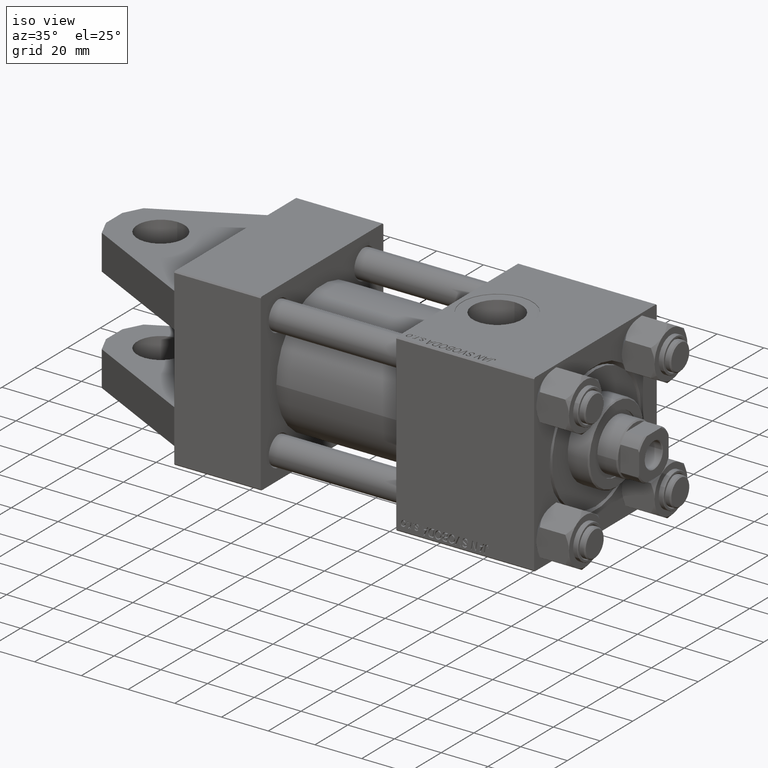
[diagram: clean part render]
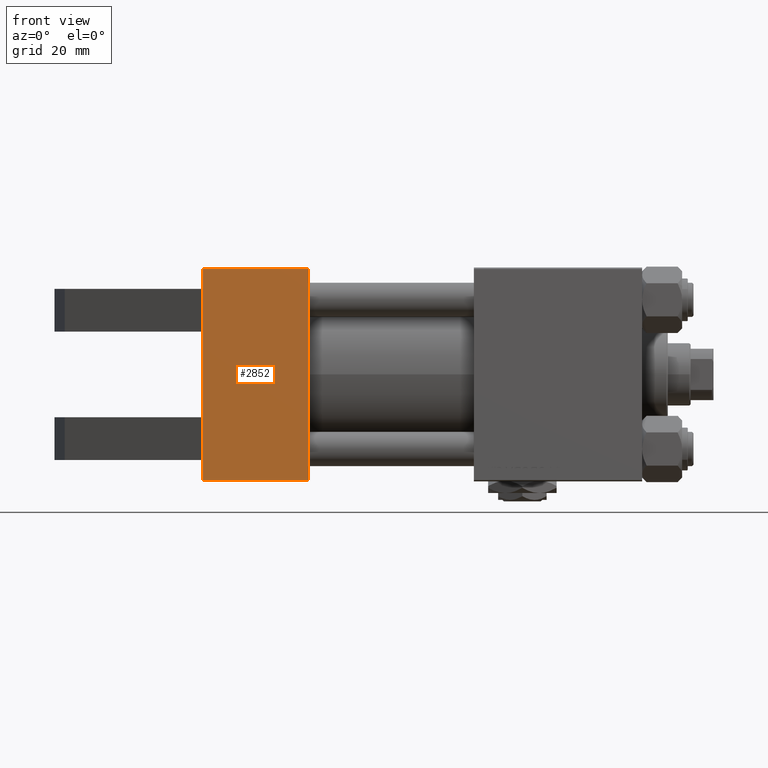
[diagram: tour spotlight — one face highlighted and labeled with its STEP entity id]
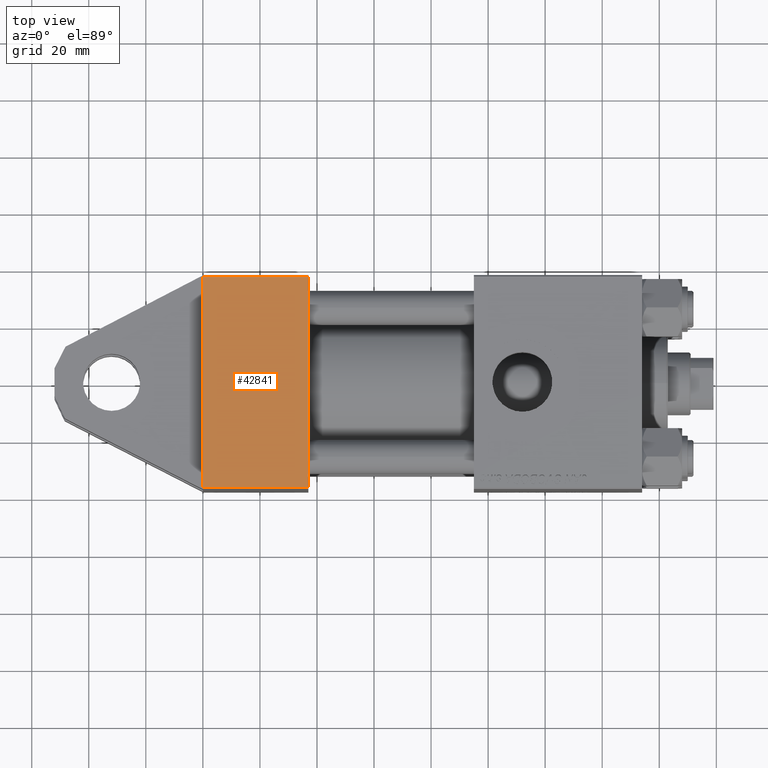
[diagram: tour spotlight — one face highlighted and labeled with its STEP entity id]
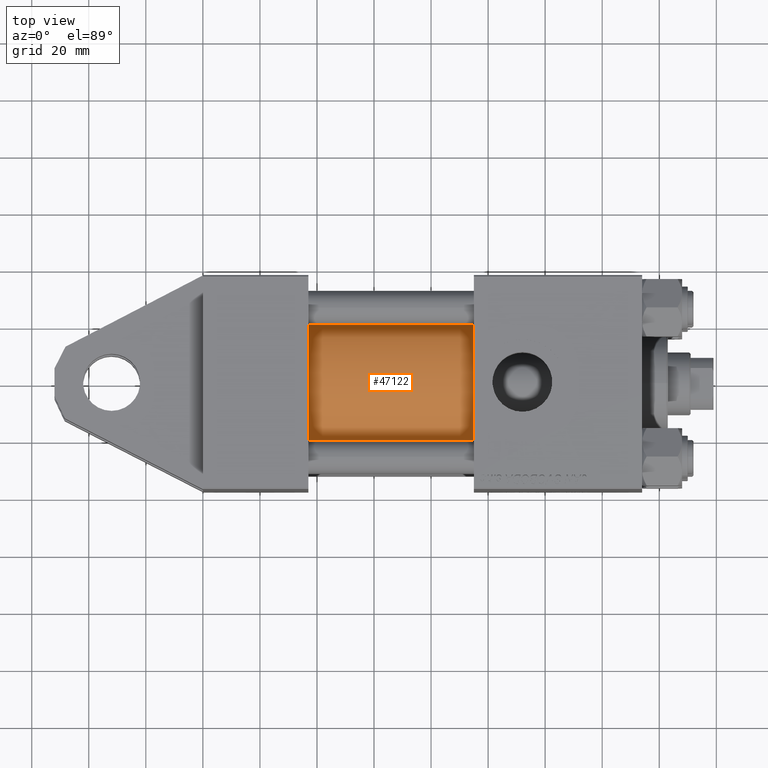
[diagram: tour spotlight — one face highlighted and labeled with its STEP entity id]
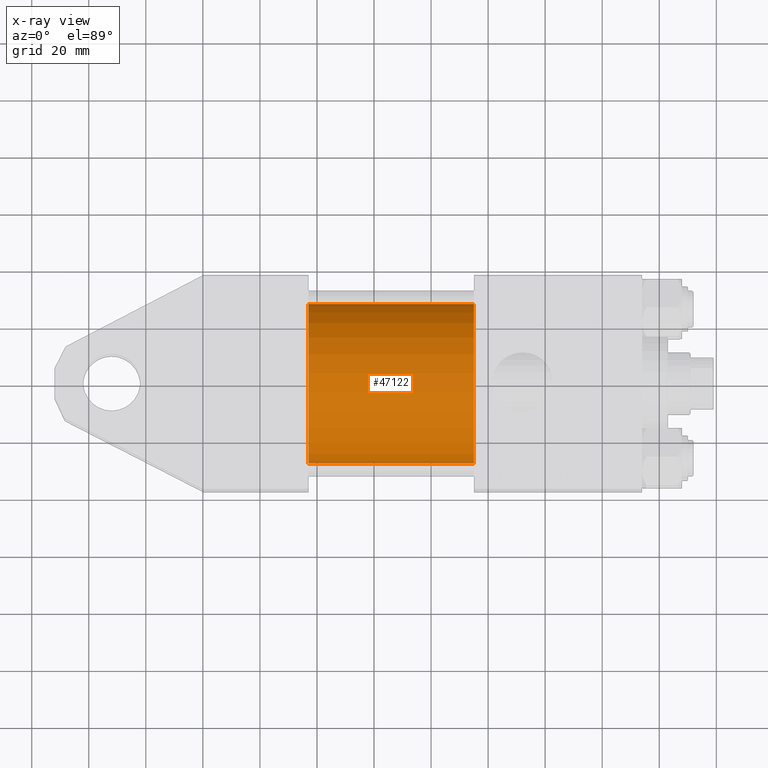
[diagram: x-ray of the same camera — body ghosted, this tour face saturated]
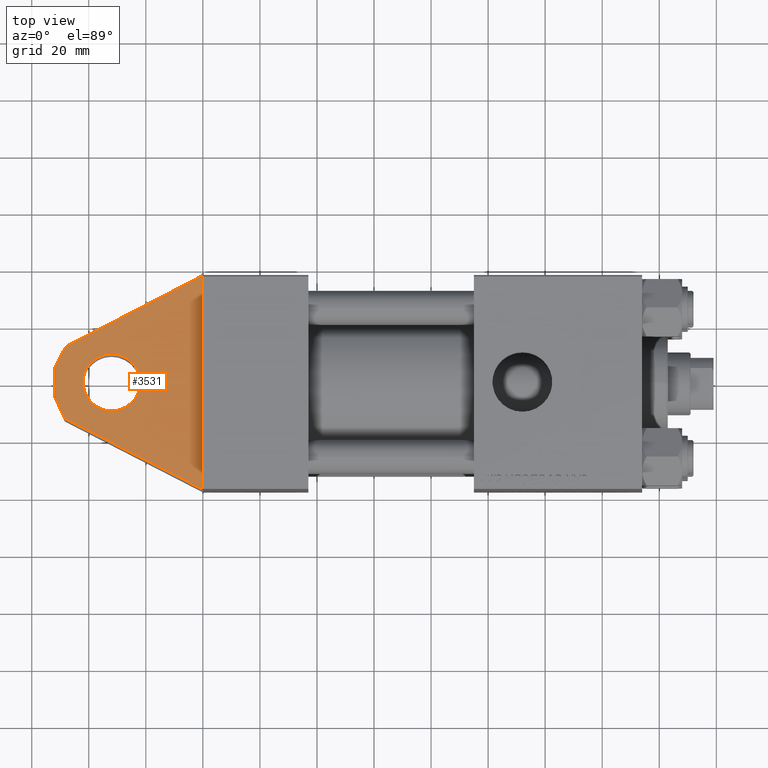
[diagram: tour spotlight — one face highlighted and labeled with its STEP entity id]
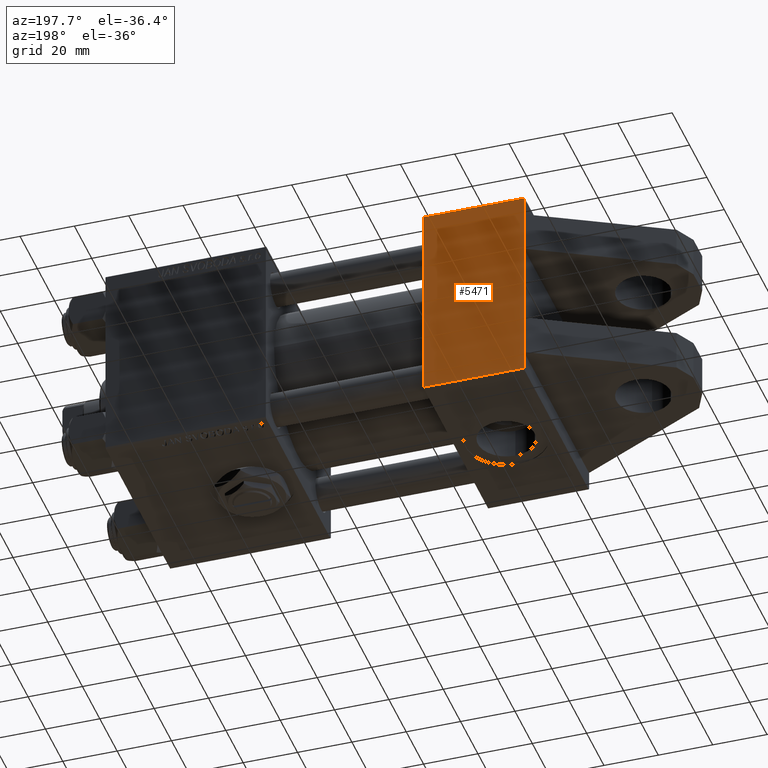
[diagram: tour spotlight — one face highlighted and labeled with its STEP entity id]
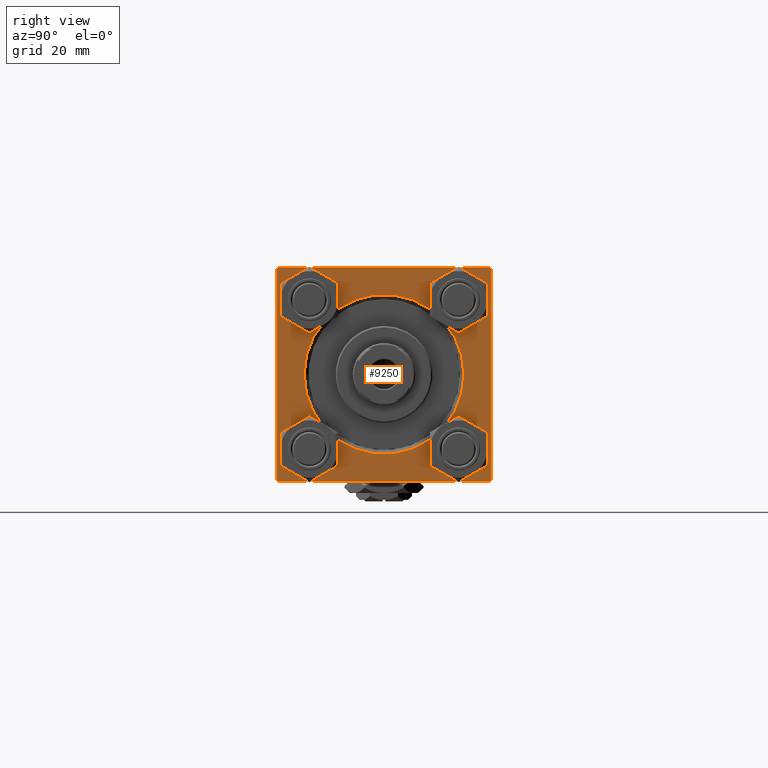
[diagram: tour spotlight — one face highlighted and labeled with its STEP entity id]
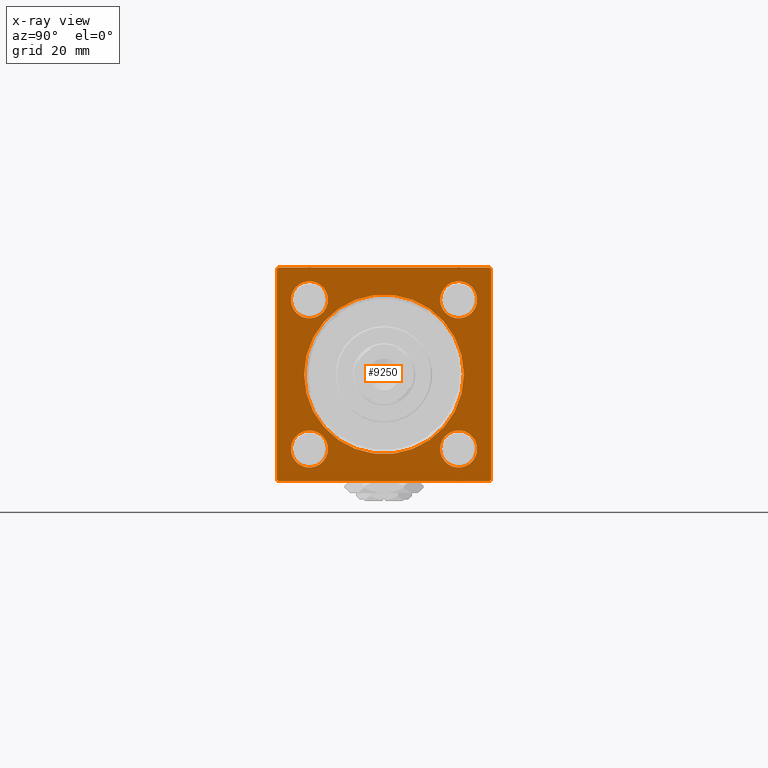
[diagram: x-ray of the same camera — body ghosted, this tour face saturated]
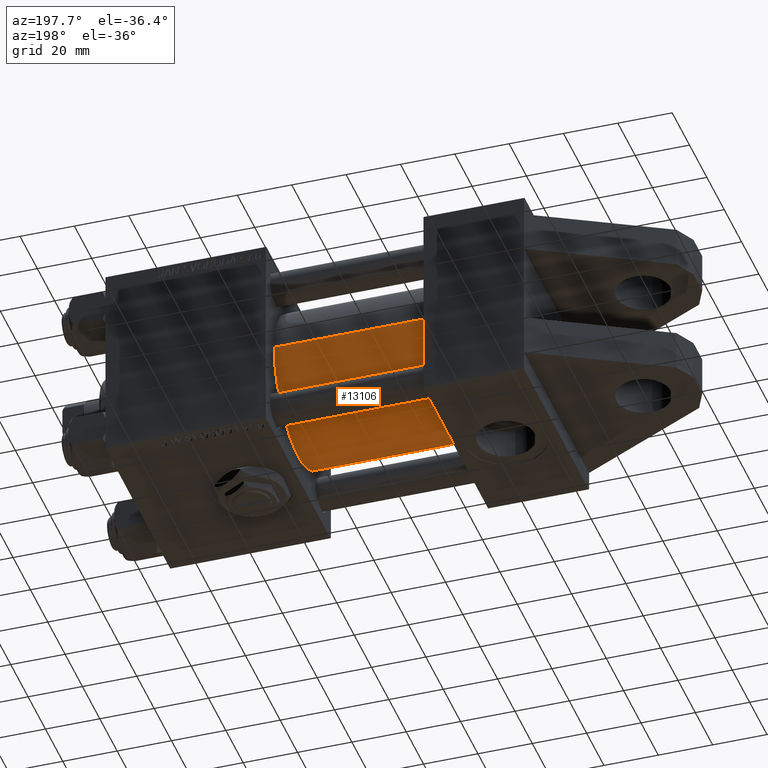
[diagram: tour spotlight — one face highlighted and labeled with its STEP entity id]
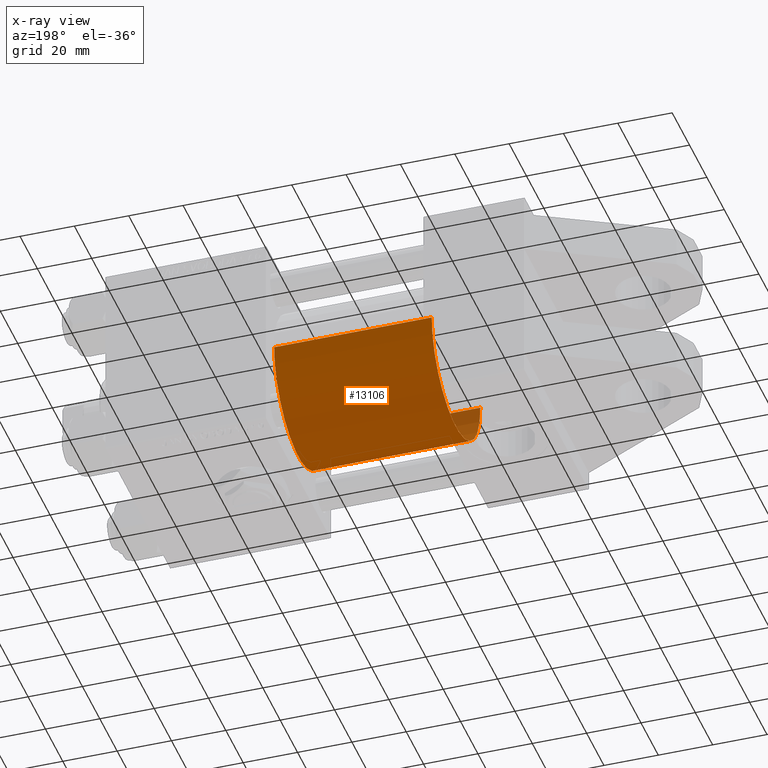
[diagram: x-ray of the same camera — body ghosted, this tour face saturated]
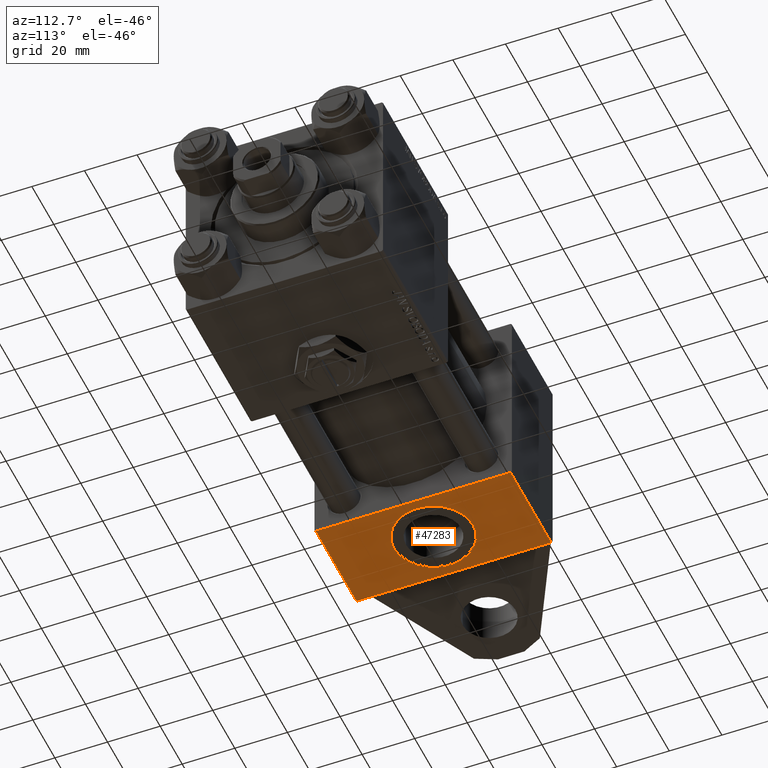
[diagram: tour spotlight — one face highlighted and labeled with its STEP entity id]
A machine part: a face-by-face anatomy tour. The part has 1176 B-rep faces; the first image is the clean iso view, then the 8 largest visible faces are spotlighted one at a time (largest first), each with its STEP entity span.

Face 1 — front view, entity #2852. In plain terms, the highlighted planar face has unit normal (0, -1, -0).
Definition (entity closure, byte-faithful):
#416 = LINE ( 'NONE', #26100, #2701 ) ;
#1530 = VECTOR ( 'NONE', #22332, 1000.000000000000000 ) ;
#1742 = ORIENTED_EDGE ( 'NONE', *, *, #3880, .T. ) ;
#2701 = VECTOR ( 'NONE', #12643, 1000.000000000000000 ) ;
#2852 = ADVANCED_FACE ( 'NONE', ( #11860 ), #3806, .T. ) ;
#3102 = DIRECTION ( 'NONE',  ( 0.000000000000000000, -1.000000000000000000, -9.251858538542972814E-17 ) ) ;
#3184 = EDGE_CURVE ( 'NONE', #46939, #23596, #42995, .T. ) ;
#3486 = VECTOR ( 'NONE', #3102, 1000.000000000000000 ) ;
#3806 = PLANE ( 'NONE',  #36883 ) ;
#3880 = EDGE_CURVE ( 'NONE', #17426, #16801, #20763, .T. ) ;
#4793 = ORIENTED_EDGE ( 'NONE', *, *, #37857, .F. ) ;
#5600 = DIRECTION ( 'NONE',  ( -1.000000000000000000, 0.000000000000000000, 0.000000000000000000 ) ) ;
#6621 = CARTESIAN_POINT ( 'NONE',  ( 0.000000000000000000, 30.00000000000000000, -37.50000000000000711 ) ) ;
#6649 = EDGE_LOOP ( 'NONE', ( #51392, #49361, #12657, #44954, #37991, #1742, #16624, #4793 ) ) ;
#7024 = CARTESIAN_POINT ( 'NONE',  ( 0.000000000000000000, -30.00000000000000000, -37.50000000000000711 ) ) ;
#7151 = CARTESIAN_POINT ( 'NONE',  ( 37.00000000000000000, 37.49999999999999289, -37.50000000000000000 ) ) ;
#7466 = DIRECTION ( 'NONE',  ( 0.000000000000000000, 1.000000000000000000, 9.251858538542972814E-17 ) ) ;
#8469 = LINE ( 'NONE', #28488, #43008 ) ;
#11860 = FACE_OUTER_BOUND ( 'NONE', #6649, .T. ) ;
#12643 = DIRECTION ( 'NONE',  ( 1.000000000000000000, 0.000000000000000000, 0.000000000000000000 ) ) ;
#12657 = ORIENTED_EDGE ( 'NONE', *, *, #3184, .T. ) ;
#13226 = DIRECTION ( 'NONE',  ( -0.000000000000000000, 1.000000000000000000, -0.000000000000000000 ) ) ;
#15199 = DIRECTION ( 'NONE',  ( 0.000000000000000000, -1.000000000000000000, -9.251858538542972814E-17 ) ) ;
#16624 = ORIENTED_EDGE ( 'NONE', *, *, #18042, .F. ) ;
#16801 = VERTEX_POINT ( 'NONE', #48731 ) ;
#17205 = DIRECTION ( 'NONE',  ( -0.000000000000000000, -1.000000000000000000, -0.000000000000000000 ) ) ;
#17426 = VERTEX_POINT ( 'NONE', #7024 ) ;
#18042 = EDGE_CURVE ( 'NONE', #49125, #16801, #38536, .T. ) ;
#20763 = LINE ( 'NONE', #41015, #46845 ) ;
#21566 = EDGE_CURVE ( 'NONE', #23596, #21634, #8469, .T. ) ;
#21634 = VERTEX_POINT ( 'NONE', #22238 ) ;
#22238 = CARTESIAN_POINT ( 'NONE',  ( 0.000000000000000000, -37.00000000000002132, -37.50000000000000711 ) ) ;
#22332 = DIRECTION ( 'NONE',  ( 0.000000000000000000, -1.000000000000000000, -9.251858538542972814E-17 ) ) ;
#22625 = EDGE_CURVE ( 'NONE', #17426, #21634, #46221, .T. ) ;
#23596 = VERTEX_POINT ( 'NONE', #27013 ) ;
#26100 = CARTESIAN_POINT ( 'NONE',  ( 37.00000000000000000, 36.99999999999997868, -37.50000000000000000 ) ) ;
#27013 = CARTESIAN_POINT ( 'NONE',  ( 37.00000000000000000, -37.00000000000002132, -37.50000000000000711 ) ) ;
#27931 = CARTESIAN_POINT ( 'NONE',  ( 0.000000000000000000, 36.99999999999997868, -37.50000000000000000 ) ) ;
#28488 = CARTESIAN_POINT ( 'NONE',  ( 0.000000000000000000, -37.00000000000002132, -37.50000000000000711 ) ) ;
#30928 = CARTESIAN_POINT ( 'NONE',  ( 0.000000000000000000, 37.49999999999999289, -37.50000000000000000 ) ) ;
#33061 = LINE ( 'NONE', #48890, #36479 ) ;
#36479 = VECTOR ( 'NONE', #17205, 1000.000000000000000 ) ;
#36654 = VERTEX_POINT ( 'NONE', #27931 ) ;
#36883 = AXIS2_PLACEMENT_3D ( 'NONE', #46955, #43056, #7466 ) ;
#37857 = EDGE_CURVE ( 'NONE', #42939, #49125, #33061, .T. ) ;
#37991 = ORIENTED_EDGE ( 'NONE', *, *, #22625, .F. ) ;
#38431 = CARTESIAN_POINT ( 'NONE',  ( 0.000000000000000000, 37.49999999999999289, -37.50000000000000000 ) ) ;
#38536 = LINE ( 'NONE', #45821, #45513 ) ;
#41015 = CARTESIAN_POINT ( 'NONE',  ( 0.000000000000000000, -30.00000000000000000, -37.50000000000000711 ) ) ;
#41584 = CARTESIAN_POINT ( 'NONE',  ( 0.000000000000000000, 15.00000000000000000, -37.50000000000000000 ) ) ;
#42939 = VERTEX_POINT ( 'NONE', #6621 ) ;
#42995 = LINE ( 'NONE', #7151, #50946 ) ;
#43008 = VECTOR ( 'NONE', #5600, 1000.000000000000000 ) ;
#43056 = DIRECTION ( 'NONE',  ( 0.000000000000000000, 9.251858538542972814E-17, -1.000000000000000000 ) ) ;
#43316 = EDGE_CURVE ( 'NONE', #36654, #42939, #45742, .T. ) ;
#43707 = CARTESIAN_POINT ( 'NONE',  ( 37.00000000000000000, 36.99999999999997868, -37.50000000000000000 ) ) ;
#44954 = ORIENTED_EDGE ( 'NONE', *, *, #21566, .T. ) ;
#45264 = EDGE_CURVE ( 'NONE', #36654, #46939, #416, .T. ) ;
#45513 = VECTOR ( 'NONE', #50226, 1000.000000000000000 ) ;
#45742 = LINE ( 'NONE', #30928, #3486 ) ;
#45821 = CARTESIAN_POINT ( 'NONE',  ( 0.000000000000000000, 37.49999999999999289, -37.50000000000000000 ) ) ;
#46221 = LINE ( 'NONE', #38431, #1530 ) ;
#46845 = VECTOR ( 'NONE', #13226, 1000.000000000000000 ) ;
#46939 = VERTEX_POINT ( 'NONE', #43707 ) ;
#46955 = CARTESIAN_POINT ( 'NONE',  ( 37.00000000000000000, 37.49999999999999289, -37.50000000000000000 ) ) ;
#48731 = CARTESIAN_POINT ( 'NONE',  ( 0.000000000000000000, -15.00000000000000000, -37.50000000000000711 ) ) ;
#48890 = CARTESIAN_POINT ( 'NONE',  ( 0.000000000000000000, 30.00000000000000000, -37.50000000000000711 ) ) ;
#49125 = VERTEX_POINT ( 'NONE', #41584 ) ;
#49361 = ORIENTED_EDGE ( 'NONE', *, *, #45264, .T. ) ;
#50226 = DIRECTION ( 'NONE',  ( 0.000000000000000000, -1.000000000000000000, -9.251858538542972814E-17 ) ) ;
#50946 = VECTOR ( 'NONE', #15199, 1000.000000000000000 ) ;
#51392 = ORIENTED_EDGE ( 'NONE', *, *, #43316, .F. ) ;

Face 2 — top view, entity #42841. In plain terms, the highlighted planar face has unit normal (0, 0, -1).
Definition (entity closure, byte-faithful):
#5680 = VECTOR ( 'NONE', #45736, 1000.000000000000000 ) ;
#6967 = EDGE_CURVE ( 'NONE', #14301, #32338, #21038, .T. ) ;
#7135 = DIRECTION ( 'NONE',  ( 0.000000000000000000, -9.251858538542971581E-17, 1.000000000000000000 ) ) ;
#7596 = VERTEX_POINT ( 'NONE', #8957 ) ;
#8957 = CARTESIAN_POINT ( 'NONE',  ( 0.000000000000000000, -37.50000000000000711, 36.99999999999999289 ) ) ;
#9940 = DIRECTION ( 'NONE',  ( 0.000000000000000000, 9.251858538542971581E-17, -1.000000000000000000 ) ) ;
#12369 = VECTOR ( 'NONE', #9940, 1000.000000000000000 ) ;
#14301 = VERTEX_POINT ( 'NONE', #44382 ) ;
#17725 = LINE ( 'NONE', #17975, #47227 ) ;
#17975 = CARTESIAN_POINT ( 'NONE',  ( 0.000000000000000000, -37.50000000000000711, 37.49999999999999289 ) ) ;
#21038 = LINE ( 'NONE', #28336, #44425 ) ;
#21642 = ORIENTED_EDGE ( 'NONE', *, *, #23207, .T. ) ;
#21784 = VERTEX_POINT ( 'NONE', #36711 ) ;
#23143 = EDGE_CURVE ( 'NONE', #21784, #32338, #33333, .T. ) ;
#23207 = EDGE_CURVE ( 'NONE', #7596, #14301, #17725, .T. ) ;
#24025 = ORIENTED_EDGE ( 'NONE', *, *, #30604, .T. ) ;
#25872 = PLANE ( 'NONE',  #25908 ) ;
#25908 = AXIS2_PLACEMENT_3D ( 'NONE', #41701, #33917, #7135 ) ;
#28336 = CARTESIAN_POINT ( 'NONE',  ( 37.00000000000000000, -37.50000000000000000, -37.00000000000003553 ) ) ;
#29412 = CARTESIAN_POINT ( 'NONE',  ( 37.00000000000000000, -37.50000000000000000, -37.00000000000003553 ) ) ;
#30604 = EDGE_CURVE ( 'NONE', #21784, #7596, #44952, .T. ) ;
#32338 = VERTEX_POINT ( 'NONE', #29412 ) ;
#33278 = CARTESIAN_POINT ( 'NONE',  ( 37.00000000000000000, -37.50000000000000711, 36.99999999999999289 ) ) ;
#33333 = LINE ( 'NONE', #41108, #12369 ) ;
#33917 = DIRECTION ( 'NONE',  ( -0.000000000000000000, 1.000000000000000000, 9.251858538542971581E-17 ) ) ;
#36385 = DIRECTION ( 'NONE',  ( 1.000000000000000000, 0.000000000000000000, 0.000000000000000000 ) ) ;
#36711 = CARTESIAN_POINT ( 'NONE',  ( 37.00000000000000000, -37.50000000000000711, 36.99999999999999289 ) ) ;
#36909 = EDGE_LOOP ( 'NONE', ( #21642, #38270, #43747, #24025 ) ) ;
#38270 = ORIENTED_EDGE ( 'NONE', *, *, #6967, .T. ) ;
#41108 = CARTESIAN_POINT ( 'NONE',  ( 37.00000000000000000, -37.50000000000000711, 37.49999999999999289 ) ) ;
#41701 = CARTESIAN_POINT ( 'NONE',  ( 37.00000000000000000, -37.50000000000000711, 37.49999999999999289 ) ) ;
#42841 = ADVANCED_FACE ( 'NONE', ( #45346 ), #25872, .F. ) ;
#43747 = ORIENTED_EDGE ( 'NONE', *, *, #23143, .F. ) ;
#44382 = CARTESIAN_POINT ( 'NONE',  ( 0.000000000000000000, -37.50000000000000000, -37.00000000000003553 ) ) ;
#44425 = VECTOR ( 'NONE', #36385, 1000.000000000000000 ) ;
#44952 = LINE ( 'NONE', #33278, #5680 ) ;
#45274 = DIRECTION ( 'NONE',  ( 0.000000000000000000, 9.251858538542971581E-17, -1.000000000000000000 ) ) ;
#45346 = FACE_OUTER_BOUND ( 'NONE', #36909, .T. ) ;
#45736 = DIRECTION ( 'NONE',  ( -1.000000000000000000, 0.000000000000000000, 0.000000000000000000 ) ) ;
#47227 = VECTOR ( 'NONE', #45274, 1000.000000000000000 ) ;

Face 3 — top view, entity #47122. An x-ray twin of the same camera follows (body ghosted, this face saturated) — the face is partly hidden behind the body. In plain terms, the highlighted cylindrical surface (partial cylindrical patch) has radius 28 mm, axis along (-1, -0, 0).
Definition (entity closure, byte-faithful):
#974 = ORIENTED_EDGE ( 'NONE', *, *, #15559, .F. ) ;
#3586 = CYLINDRICAL_SURFACE ( 'NONE', #9389, 28.00000000000000000 ) ;
#5830 = CARTESIAN_POINT ( 'NONE',  ( 95.00000000000000000, -4.043591434102586818E-17, -28.00000000000000000 ) ) ;
#8993 = DIRECTION ( 'NONE',  ( -1.000000000000000000, -0.000000000000000000, -0.000000000000000000 ) ) ;
#9389 = AXIS2_PLACEMENT_3D ( 'NONE', #20204, #12151, #23361 ) ;
#10972 = EDGE_LOOP ( 'NONE', ( #974, #24248, #30275, #40487 ) ) ;
#11653 = FACE_OUTER_BOUND ( 'NONE', #10972, .T. ) ;
#12151 = DIRECTION ( 'NONE',  ( -1.000000000000000000, -0.000000000000000000, -0.000000000000000000 ) ) ;
#12940 = CARTESIAN_POINT ( 'NONE',  ( 95.00000000000000000, -3.469446951953614189E-15, 28.00000000000000000 ) ) ;
#13621 = VERTEX_POINT ( 'NONE', #12940 ) ;
#13676 = LINE ( 'NONE', #28500, #21322 ) ;
#15379 = CARTESIAN_POINT ( 'NONE',  ( 37.00000000000000000, -3.469446951953614189E-15, 28.00000000000000000 ) ) ;
#15559 = EDGE_CURVE ( 'NONE', #38775, #36601, #13676, .T. ) ;
#15787 = DIRECTION ( 'NONE',  ( 1.000000000000000000, -0.000000000000000000, 0.000000000000000000 ) ) ;
#18925 = EDGE_CURVE ( 'NONE', #13621, #38775, #23151, .T. ) ;
#19172 = CARTESIAN_POINT ( 'NONE',  ( 95.00000000000000000, -3.469446951953614189E-15, 0.000000000000000000 ) ) ;
#20204 = CARTESIAN_POINT ( 'NONE',  ( 95.00000000000000000, -3.469446951953614189E-15, 0.000000000000000000 ) ) ;
#20950 = DIRECTION ( 'NONE',  ( 1.000000000000000000, 0.000000000000000000, 0.000000000000000000 ) ) ;
#21322 = VECTOR ( 'NONE', #8993, 1000.000000000000000 ) ;
#22689 = EDGE_CURVE ( 'NONE', #48826, #36601, #48827, .T. ) ;
#23151 = CIRCLE ( 'NONE', #37271, 28.00000000000000000 ) ;
#23361 = DIRECTION ( 'NONE',  ( 0.000000000000000000, 0.000000000000000000, 1.000000000000000000 ) ) ;
#23372 = DIRECTION ( 'NONE',  ( -1.000000000000000000, -0.000000000000000000, -0.000000000000000000 ) ) ;
#24248 = ORIENTED_EDGE ( 'NONE', *, *, #18925, .F. ) ;
#24618 = CARTESIAN_POINT ( 'NONE',  ( 37.00000000000000000, -3.469446951953614189E-15, 0.000000000000000000 ) ) ;
#26023 = EDGE_CURVE ( 'NONE', #13621, #48826, #51387, .T. ) ;
#26448 = AXIS2_PLACEMENT_3D ( 'NONE', #24618, #15787, #47996 ) ;
#28500 = CARTESIAN_POINT ( 'NONE',  ( 95.00000000000000000, -4.043591434102586818E-17, -28.00000000000000000 ) ) ;
#30039 = VECTOR ( 'NONE', #23372, 1000.000000000000000 ) ;
#30275 = ORIENTED_EDGE ( 'NONE', *, *, #26023, .T. ) ;
#31583 = CARTESIAN_POINT ( 'NONE',  ( 37.00000000000000000, -4.043591434102586818E-17, -28.00000000000000000 ) ) ;
#31670 = CARTESIAN_POINT ( 'NONE',  ( 95.00000000000000000, -3.469446951953614189E-15, 28.00000000000000000 ) ) ;
#36300 = DIRECTION ( 'NONE',  ( 0.000000000000000000, 0.000000000000000000, -1.000000000000000000 ) ) ;
#36601 = VERTEX_POINT ( 'NONE', #31583 ) ;
#37271 = AXIS2_PLACEMENT_3D ( 'NONE', #19172, #20950, #36300 ) ;
#38775 = VERTEX_POINT ( 'NONE', #5830 ) ;
#40487 = ORIENTED_EDGE ( 'NONE', *, *, #22689, .T. ) ;
#47122 = ADVANCED_FACE ( 'NONE', ( #11653 ), #3586, .T. ) ;
#47996 = DIRECTION ( 'NONE',  ( 0.000000000000000000, 0.000000000000000000, 1.000000000000000000 ) ) ;
#48826 = VERTEX_POINT ( 'NONE', #15379 ) ;
#48827 = CIRCLE ( 'NONE', #26448, 28.00000000000000000 ) ;
#51387 = LINE ( 'NONE', #31670, #30039 ) ;

Face 4 — top view, entity #3531. In plain terms, the highlighted planar face has unit normal (0, 0, 1).
Definition (entity closure, byte-faithful):
#207 = CARTESIAN_POINT ( 'NONE',  ( -32.00000000000000000, -30.00000000000000000, -6.938893903907228378E-15 ) ) ;
#1060 = EDGE_CURVE ( 'NONE', #51271, #13245, #30969, .T. ) ;
#1610 = ORIENTED_EDGE ( 'NONE', *, *, #32589, .T. ) ;
#2912 = ORIENTED_EDGE ( 'NONE', *, *, #18147, .F. ) ;
#3531 = ADVANCED_FACE ( 'NONE', ( #26847, #35151 ), #26338, .T. ) ;
#4030 = EDGE_CURVE ( 'NONE', #11425, #44131, #50090, .T. ) ;
#5693 = VECTOR ( 'NONE', #46460, 1000.000000000000000 ) ;
#6353 = CARTESIAN_POINT ( 'NONE',  ( -32.00000000000000000, -30.00000000000000000, -6.938893903907228378E-15 ) ) ;
#6707 = CARTESIAN_POINT ( 'NONE',  ( -48.43732805352595960, -30.00000000000000000, -12.64017464471899110 ) ) ;
#7020 = VECTOR ( 'NONE', #26722, 1000.000000000000000 ) ;
#7024 = CARTESIAN_POINT ( 'NONE',  ( 0.000000000000000000, -30.00000000000000000, -37.50000000000000711 ) ) ;
#7847 = AXIS2_PLACEMENT_3D ( 'NONE', #6353, #38057, #21695 ) ;
#8774 = CARTESIAN_POINT ( 'NONE',  ( -52.00000000000000711, -30.00000000000000000, -5.000000000000007105 ) ) ;
#8872 = EDGE_CURVE ( 'NONE', #30755, #18931, #12856, .T. ) ;
#8942 = ORIENTED_EDGE ( 'NONE', *, *, #1060, .F. ) ;
#10313 = AXIS2_PLACEMENT_3D ( 'NONE', #50973, #49966, #38283 ) ;
#10930 = EDGE_LOOP ( 'NONE', ( #33373, #1610 ) ) ;
#11425 = VERTEX_POINT ( 'NONE', #45487 ) ;
#11582 = AXIS2_PLACEMENT_3D ( 'NONE', #207, #20232, #16339 ) ;
#12856 = CIRCLE ( 'NONE', #7847, 10.00000000000000000 ) ;
#13245 = VERTEX_POINT ( 'NONE', #49974 ) ;
#13781 = CARTESIAN_POINT ( 'NONE',  ( 0.000000000000000000, -30.00000000000001421, 37.49999999999999289 ) ) ;
#14134 = ORIENTED_EDGE ( 'NONE', *, *, #36286, .F. ) ;
#14508 = LINE ( 'NONE', #6707, #5693 ) ;
#14820 = DIRECTION ( 'NONE',  ( 0.000000000000000000, 0.000000000000000000, -1.000000000000000000 ) ) ;
#16339 = DIRECTION ( 'NONE',  ( 0.000000000000000000, 0.000000000000000000, 1.000000000000000000 ) ) ;
#16403 = DIRECTION ( 'NONE',  ( 0.8875055616531780656, 0.000000000000000000, 0.4607970030660757943 ) ) ;
#17426 = VERTEX_POINT ( 'NONE', #7024 ) ;
#18147 = EDGE_CURVE ( 'NONE', #44131, #30606, #19543, .T. ) ;
#18759 = EDGE_CURVE ( 'NONE', #17426, #51271, #14508, .T. ) ;
#18931 = VERTEX_POINT ( 'NONE', #48748 ) ;
#19543 = LINE ( 'NONE', #47085, #39699 ) ;
#20232 = DIRECTION ( 'NONE',  ( -0.000000000000000000, 1.000000000000000000, -0.000000000000000000 ) ) ;
#21695 = DIRECTION ( 'NONE',  ( 0.000000000000000000, 0.000000000000000000, 1.000000000000000000 ) ) ;
#21757 = CARTESIAN_POINT ( 'NONE',  ( -48.43732805352595960, -30.00000000000000000, -12.64017464471899110 ) ) ;
#22230 = CARTESIAN_POINT ( 'NONE',  ( -32.00000000000000000, -30.00000000000000000, 9.999999999999992895 ) ) ;
#23728 = EDGE_CURVE ( 'NONE', #13245, #11425, #47493, .T. ) ;
#24002 = VECTOR ( 'NONE', #14820, 1000.000000000000000 ) ;
#25503 = CARTESIAN_POINT ( 'NONE',  ( -48.15077811301358679, -30.00000000000000000, 12.49989272354909353 ) ) ;
#26338 = PLANE ( 'NONE',  #10313 ) ;
#26722 = DIRECTION ( 'NONE',  ( 0.4566099510066921607, 0.000000000000000000, 0.8896669897448518105 ) ) ;
#26847 = FACE_BOUND ( 'NONE', #10930, .T. ) ;
#27233 = EDGE_LOOP ( 'NONE', ( #50130, #39253, #8942, #42703, #14134, #2912 ) ) ;
#30606 = VERTEX_POINT ( 'NONE', #13781 ) ;
#30755 = VERTEX_POINT ( 'NONE', #22230 ) ;
#30969 = LINE ( 'NONE', #34363, #41764 ) ;
#32326 = VECTOR ( 'NONE', #51384, 1000.000000000000000 ) ;
#32589 = EDGE_CURVE ( 'NONE', #18931, #30755, #37295, .T. ) ;
#33373 = ORIENTED_EDGE ( 'NONE', *, *, #8872, .T. ) ;
#34363 = CARTESIAN_POINT ( 'NONE',  ( -52.00000000000000711, -30.00000000000000000, -5.000000000000007105 ) ) ;
#34591 = LINE ( 'NONE', #50409, #24002 ) ;
#34623 = DIRECTION ( 'NONE',  ( -0.4226182617406929465, 0.000000000000000000, 0.9063077870366529343 ) ) ;
#35151 = FACE_OUTER_BOUND ( 'NONE', #27233, .T. ) ;
#36286 = EDGE_CURVE ( 'NONE', #30606, #17426, #34591, .T. ) ;
#37295 = CIRCLE ( 'NONE', #11582, 10.00000000000000000 ) ;
#38057 = DIRECTION ( 'NONE',  ( -0.000000000000000000, 1.000000000000000000, -0.000000000000000000 ) ) ;
#38283 = DIRECTION ( 'NONE',  ( 0.000000000000000000, 0.000000000000000000, 1.000000000000000000 ) ) ;
#39253 = ORIENTED_EDGE ( 'NONE', *, *, #23728, .F. ) ;
#39606 = CARTESIAN_POINT ( 'NONE',  ( -52.00000000000000711, -30.00000000000000000, 4.999999999999992895 ) ) ;
#39699 = VECTOR ( 'NONE', #16403, 1000.000000000000114 ) ;
#41764 = VECTOR ( 'NONE', #34623, 1000.000000000000114 ) ;
#42703 = ORIENTED_EDGE ( 'NONE', *, *, #18759, .F. ) ;
#44131 = VERTEX_POINT ( 'NONE', #25503 ) ;
#45487 = CARTESIAN_POINT ( 'NONE',  ( -52.00000000000000711, -30.00000000000000000, 4.999999999999992895 ) ) ;
#46460 = DIRECTION ( 'NONE',  ( -0.8896669897448514774, 0.000000000000000000, 0.4566099510066927158 ) ) ;
#47085 = CARTESIAN_POINT ( 'NONE',  ( -48.15077811301358679, -30.00000000000000000, 12.49989272354909353 ) ) ;
#47493 = LINE ( 'NONE', #8774, #32326 ) ;
#48748 = CARTESIAN_POINT ( 'NONE',  ( -32.00000000000000000, -30.00000000000000000, -10.00000000000000711 ) ) ;
#49966 = DIRECTION ( 'NONE',  ( 0.000000000000000000, -1.000000000000000000, 0.000000000000000000 ) ) ;
#49974 = CARTESIAN_POINT ( 'NONE',  ( -52.00000000000000711, -30.00000000000000000, -5.000000000000007105 ) ) ;
#50090 = LINE ( 'NONE', #39606, #7020 ) ;
#50130 = ORIENTED_EDGE ( 'NONE', *, *, #4030, .F. ) ;
#50409 = CARTESIAN_POINT ( 'NONE',  ( 0.000000000000000000, -30.00000000000000000, 37.49999999999999289 ) ) ;
#50973 = CARTESIAN_POINT ( 'NONE',  ( 0.000000000000000000, -30.00000000000000000, 0.000000000000000000 ) ) ;
#51271 = VERTEX_POINT ( 'NONE', #21757 ) ;
#51384 = DIRECTION ( 'NONE',  ( 0.000000000000000000, 0.000000000000000000, 1.000000000000000000 ) ) ;

Face 5 — auxiliary view, entity #5471. In plain terms, the highlighted planar face has unit normal (0, -1, -0).
Definition (entity closure, byte-faithful):
#735 = LINE ( 'NONE', #20767, #42547 ) ;
#1414 = ORIENTED_EDGE ( 'NONE', *, *, #12118, .T. ) ;
#2077 = CARTESIAN_POINT ( 'NONE',  ( 0.000000000000000000, 36.99999999999999289, 37.50000000000000000 ) ) ;
#3992 = EDGE_LOOP ( 'NONE', ( #7033, #1414, #19493, #7150, #40912, #6758, #25000, #9374 ) ) ;
#4163 = CARTESIAN_POINT ( 'NONE',  ( 37.00000000000000000, 36.99999999999999289, 37.50000000000000000 ) ) ;
#4684 = VECTOR ( 'NONE', #17934, 1000.000000000000000 ) ;
#5471 = ADVANCED_FACE ( 'NONE', ( #37522 ), #49462, .F. ) ;
#6722 = VECTOR ( 'NONE', #12351, 1000.000000000000000 ) ;
#6758 = ORIENTED_EDGE ( 'NONE', *, *, #35413, .T. ) ;
#6891 = CARTESIAN_POINT ( 'NONE',  ( 0.000000000000000000, 30.00000000000000000, 37.49999999999999289 ) ) ;
#7033 = ORIENTED_EDGE ( 'NONE', *, *, #39598, .T. ) ;
#7150 = ORIENTED_EDGE ( 'NONE', *, *, #40765, .F. ) ;
#8759 = DIRECTION ( 'NONE',  ( 0.000000000000000000, -1.000000000000000000, -9.251858538542971581E-17 ) ) ;
#9374 = ORIENTED_EDGE ( 'NONE', *, *, #14237, .T. ) ;
#11277 = CARTESIAN_POINT ( 'NONE',  ( 0.000000000000000000, -15.00000000000000000, 37.49999999999999289 ) ) ;
#11596 = VERTEX_POINT ( 'NONE', #43618 ) ;
#12118 = EDGE_CURVE ( 'NONE', #35643, #29102, #30049, .T. ) ;
#12351 = DIRECTION ( 'NONE',  ( 0.000000000000000000, -1.000000000000000000, -9.251858538542971581E-17 ) ) ;
#12401 = LINE ( 'NONE', #40192, #39866 ) ;
#13781 = CARTESIAN_POINT ( 'NONE',  ( 0.000000000000000000, -30.00000000000001421, 37.49999999999999289 ) ) ;
#13902 = DIRECTION ( 'NONE',  ( -0.000000000000000000, 1.000000000000000000, -0.000000000000000000 ) ) ;
#14237 = EDGE_CURVE ( 'NONE', #30510, #11596, #22872, .T. ) ;
#15988 = LINE ( 'NONE', #21177, #6722 ) ;
#16393 = LINE ( 'NONE', #32774, #22432 ) ;
#17934 = DIRECTION ( 'NONE',  ( -1.000000000000000000, 0.000000000000000000, 0.000000000000000000 ) ) ;
#18024 = CARTESIAN_POINT ( 'NONE',  ( 37.00000000000000000, 37.49999999999999289, 37.50000000000000000 ) ) ;
#18049 = CARTESIAN_POINT ( 'NONE',  ( 0.000000000000000000, -30.00000000000000000, 37.49999999999999289 ) ) ;
#19493 = ORIENTED_EDGE ( 'NONE', *, *, #45029, .T. ) ;
#20767 = CARTESIAN_POINT ( 'NONE',  ( 0.000000000000000000, 37.49999999999999289, 37.50000000000000000 ) ) ;
#21177 = CARTESIAN_POINT ( 'NONE',  ( 37.00000000000000000, 37.49999999999999289, 37.50000000000000000 ) ) ;
#21939 = DIRECTION ( 'NONE',  ( 0.000000000000000000, 1.000000000000000000, 9.251858538542971581E-17 ) ) ;
#22432 = VECTOR ( 'NONE', #35894, 1000.000000000000000 ) ;
#22539 = CARTESIAN_POINT ( 'NONE',  ( 0.000000000000000000, -37.00000000000000711, 37.49999999999999289 ) ) ;
#22825 = AXIS2_PLACEMENT_3D ( 'NONE', #18024, #33636, #21939 ) ;
#22872 = LINE ( 'NONE', #2077, #4684 ) ;
#25000 = ORIENTED_EDGE ( 'NONE', *, *, #40621, .F. ) ;
#26407 = VERTEX_POINT ( 'NONE', #30598 ) ;
#28816 = CARTESIAN_POINT ( 'NONE',  ( 0.000000000000000000, 30.00000000000000000, 37.50000000000000000 ) ) ;
#29102 = VERTEX_POINT ( 'NONE', #45943 ) ;
#30049 = LINE ( 'NONE', #6891, #31207 ) ;
#30510 = VERTEX_POINT ( 'NONE', #4163 ) ;
#30598 = CARTESIAN_POINT ( 'NONE',  ( 37.00000000000000000, -37.00000000000000711, 37.49999999999999289 ) ) ;
#30606 = VERTEX_POINT ( 'NONE', #13781 ) ;
#31207 = VECTOR ( 'NONE', #45876, 1000.000000000000000 ) ;
#31850 = CARTESIAN_POINT ( 'NONE',  ( 0.000000000000000000, 37.49999999999999289, 37.50000000000000000 ) ) ;
#32774 = CARTESIAN_POINT ( 'NONE',  ( 37.00000000000000000, -37.00000000000000711, 37.49999999999999289 ) ) ;
#33295 = VECTOR ( 'NONE', #13902, 1000.000000000000000 ) ;
#33636 = DIRECTION ( 'NONE',  ( 0.000000000000000000, 9.251858538542971581E-17, -1.000000000000000000 ) ) ;
#35413 = EDGE_CURVE ( 'NONE', #51236, #26407, #16393, .T. ) ;
#35643 = VERTEX_POINT ( 'NONE', #28816 ) ;
#35894 = DIRECTION ( 'NONE',  ( 1.000000000000000000, 0.000000000000000000, 0.000000000000000000 ) ) ;
#36264 = DIRECTION ( 'NONE',  ( 0.000000000000000000, -1.000000000000000000, -9.251858538542971581E-17 ) ) ;
#37522 = FACE_OUTER_BOUND ( 'NONE', #3992, .T. ) ;
#39598 = EDGE_CURVE ( 'NONE', #11596, #35643, #12401, .T. ) ;
#39866 = VECTOR ( 'NONE', #8759, 1000.000000000000000 ) ;
#40192 = CARTESIAN_POINT ( 'NONE',  ( 0.000000000000000000, 37.49999999999999289, 37.50000000000000000 ) ) ;
#40621 = EDGE_CURVE ( 'NONE', #30510, #26407, #15988, .T. ) ;
#40624 = EDGE_CURVE ( 'NONE', #30606, #51236, #47685, .T. ) ;
#40765 = EDGE_CURVE ( 'NONE', #30606, #42018, #48974, .T. ) ;
#40912 = ORIENTED_EDGE ( 'NONE', *, *, #40624, .T. ) ;
#42018 = VERTEX_POINT ( 'NONE', #11277 ) ;
#42547 = VECTOR ( 'NONE', #44657, 1000.000000000000000 ) ;
#43618 = CARTESIAN_POINT ( 'NONE',  ( 0.000000000000000000, 36.99999999999999289, 37.50000000000000000 ) ) ;
#44657 = DIRECTION ( 'NONE',  ( 0.000000000000000000, -1.000000000000000000, -9.251858538542971581E-17 ) ) ;
#45029 = EDGE_CURVE ( 'NONE', #29102, #42018, #735, .T. ) ;
#45751 = VECTOR ( 'NONE', #36264, 1000.000000000000000 ) ;
#45876 = DIRECTION ( 'NONE',  ( -0.000000000000000000, -1.000000000000000000, -0.000000000000000000 ) ) ;
#45943 = CARTESIAN_POINT ( 'NONE',  ( 0.000000000000000000, 15.00000000000000000, 37.50000000000000000 ) ) ;
#47685 = LINE ( 'NONE', #31850, #45751 ) ;
#48974 = LINE ( 'NONE', #18049, #33295 ) ;
#49462 = PLANE ( 'NONE',  #22825 ) ;
#51236 = VERTEX_POINT ( 'NONE', #22539 ) ;

Face 6 — right view, entity #9250. An x-ray twin of the same camera follows (body ghosted, this face saturated) — the face is partly hidden behind the body. In plain terms, the highlighted planar face has unit normal (-1, 0, 0).
Definition (entity closure, byte-faithful):
#799 = VERTEX_POINT ( 'NONE', #13702 ) ;
#1506 = ORIENTED_EDGE ( 'NONE', *, *, #2474, .T. ) ;
#1631 = AXIS2_PLACEMENT_3D ( 'NONE', #24998, #45773, #21620 ) ;
#1662 = AXIS2_PLACEMENT_3D ( 'NONE', #50559, #1980, #18613 ) ;
#1849 = ORIENTED_EDGE ( 'NONE', *, *, #25679, .T. ) ;
#1968 = LINE ( 'NONE', #37576, #50561 ) ;
#1980 = DIRECTION ( 'NONE',  ( -1.000000000000000000, -0.000000000000000000, 0.000000000000000000 ) ) ;
#2147 = DIRECTION ( 'NONE',  ( 0.000000000000000000, 0.000000000000000000, 1.000000000000000000 ) ) ;
#2319 = AXIS2_PLACEMENT_3D ( 'NONE', #26076, #34391, #38778 ) ;
#2379 = VERTEX_POINT ( 'NONE', #13349 ) ;
#2474 = EDGE_CURVE ( 'NONE', #12285, #12859, #41133, .T. ) ;
#2772 = CARTESIAN_POINT ( 'NONE',  ( 154.0000000000000000, 26.14999999999999858, -32.65000000000001279 ) ) ;
#2775 = VECTOR ( 'NONE', #49443, 1000.000000000000114 ) ;
#2932 = EDGE_LOOP ( 'NONE', ( #48183, #1849 ) ) ;
#3501 = VERTEX_POINT ( 'NONE', #34652 ) ;
#3510 = DIRECTION ( 'NONE',  ( 0.000000000000000000, 0.7071067811865671127, -0.7071067811865279218 ) ) ;
#4128 = VERTEX_POINT ( 'NONE', #12317 ) ;
#4840 = VECTOR ( 'NONE', #37890, 1000.000000000000000 ) ;
#5018 = EDGE_CURVE ( 'NONE', #28189, #25322, #29160, .T. ) ;
#5022 = CARTESIAN_POINT ( 'NONE',  ( 154.0000000000000000, -37.50000000000000000, 36.99999999999995026 ) ) ;
#5319 = DIRECTION ( 'NONE',  ( 0.000000000000000000, -9.251858538542972814E-17, -1.000000000000000000 ) ) ;
#5479 = VERTEX_POINT ( 'NONE', #34415 ) ;
#5534 = DIRECTION ( 'NONE',  ( -1.000000000000000000, -0.000000000000000000, 0.000000000000000000 ) ) ;
#5780 = CARTESIAN_POINT ( 'NONE',  ( 154.0000000000000000, 26.14999999999999858, -26.15000000000000213 ) ) ;
#5783 = CARTESIAN_POINT ( 'NONE',  ( 154.0000000000000000, 0.000000000000000000, 0.000000000000000000 ) ) ;
#6655 = LINE ( 'NONE', #14453, #16583 ) ;
#6889 = VERTEX_POINT ( 'NONE', #44805 ) ;
#8189 = AXIS2_PLACEMENT_3D ( 'NONE', #40165, #36029, #47709 ) ;
#8328 = DIRECTION ( 'NONE',  ( -0.000000000000000000, 0.7071067811865425767, 0.7071067811865525687 ) ) ;
#8868 = EDGE_CURVE ( 'NONE', #32851, #5479, #27789, .T. ) ;
#9250 = ADVANCED_FACE ( 'NONE', ( #9949, #41891, #33342, #13584, #16963, #29452 ), #41633, .F. ) ;
#9270 = AXIS2_PLACEMENT_3D ( 'NONE', #28161, #43481, #43995 ) ;
#9395 = CARTESIAN_POINT ( 'NONE',  ( 154.0000000000000000, 37.50000000000000000, 37.49999999999999289 ) ) ;
#9529 = AXIS2_PLACEMENT_3D ( 'NONE', #5783, #25546, #21639 ) ;
#9949 = FACE_BOUND ( 'NONE', #24878, .T. ) ;
#10092 = LINE ( 'NONE', #25948, #4840 ) ;
#10586 = EDGE_LOOP ( 'NONE', ( #36540, #24043, #25933, #47798, #49116, #11579, #41177, #1506 ) ) ;
#10969 = CARTESIAN_POINT ( 'NONE',  ( 154.0000000000000000, 0.000000000000000000, 0.000000000000000000 ) ) ;
#11495 = DIRECTION ( 'NONE',  ( 0.000000000000000000, 0.000000000000000000, 1.000000000000000000 ) ) ;
#11500 = ORIENTED_EDGE ( 'NONE', *, *, #17151, .T. ) ;
#11579 = ORIENTED_EDGE ( 'NONE', *, *, #32826, .T. ) ;
#11790 = VERTEX_POINT ( 'NONE', #25686 ) ;
#11830 = VERTEX_POINT ( 'NONE', #17879 ) ;
#12285 = VERTEX_POINT ( 'NONE', #36743 ) ;
#12317 = CARTESIAN_POINT ( 'NONE',  ( 154.0000000000000000, 0.000000000000000000, -27.99999999999999645 ) ) ;
#12637 = EDGE_CURVE ( 'NONE', #799, #19116, #32030, .T. ) ;
#12859 = VERTEX_POINT ( 'NONE', #18659 ) ;
#12943 = VERTEX_POINT ( 'NONE', #20177 ) ;
#13349 = CARTESIAN_POINT ( 'NONE',  ( 154.0000000000000000, 26.14999999999999858, -19.64999999999999503 ) ) ;
#13385 = CARTESIAN_POINT ( 'NONE',  ( 154.0000000000000000, -26.15000000000000213, -26.15000000000000213 ) ) ;
#13563 = ORIENTED_EDGE ( 'NONE', *, *, #38503, .T. ) ;
#13584 = FACE_BOUND ( 'NONE', #45520, .T. ) ;
#13702 = CARTESIAN_POINT ( 'NONE',  ( 154.0000000000000000, 26.14999999999999858, 19.64999999999999858 ) ) ;
#13728 = VERTEX_POINT ( 'NONE', #26444 ) ;
#13932 = CARTESIAN_POINT ( 'NONE',  ( 154.0000000000000000, -26.15000000000000213, -19.64999999999999503 ) ) ;
#14453 = CARTESIAN_POINT ( 'NONE',  ( 154.0000000000000000, -36.99999999999998579, -37.50000000000000000 ) ) ;
#14795 = CIRCLE ( 'NONE', #2319, 6.500000000000002665 ) ;
#14971 = ORIENTED_EDGE ( 'NONE', *, *, #12637, .T. ) ;
#15871 = CARTESIAN_POINT ( 'NONE',  ( 154.0000000000000000, 37.50000000000000000, -36.99999999999999289 ) ) ;
#16115 = DIRECTION ( 'NONE',  ( -1.000000000000000000, -0.000000000000000000, 0.000000000000000000 ) ) ;
#16442 = VECTOR ( 'NONE', #8328, 999.9999999999998863 ) ;
#16505 = LINE ( 'NONE', #36527, #19991 ) ;
#16583 = VECTOR ( 'NONE', #3510, 1000.000000000000000 ) ;
#16963 = FACE_BOUND ( 'NONE', #42076, .T. ) ;
#17121 = CARTESIAN_POINT ( 'NONE',  ( 154.0000000000000000, 37.50000000000000000, 36.99999999999999289 ) ) ;
#17151 = EDGE_CURVE ( 'NONE', #3501, #6889, #14795, .T. ) ;
#17665 = EDGE_CURVE ( 'NONE', #11830, #12285, #10092, .T. ) ;
#17879 = CARTESIAN_POINT ( 'NONE',  ( 154.0000000000000000, 37.00000000000000000, 37.49999999999999289 ) ) ;
#18613 = DIRECTION ( 'NONE',  ( 0.000000000000000000, 0.000000000000000000, 1.000000000000000000 ) ) ;
#18659 = CARTESIAN_POINT ( 'NONE',  ( 154.0000000000000000, -37.50000000000000000, 36.99999999999995026 ) ) ;
#19116 = VERTEX_POINT ( 'NONE', #36320 ) ;
#19991 = VECTOR ( 'NONE', #5319, 1000.000000000000000 ) ;
#20177 = CARTESIAN_POINT ( 'NONE',  ( 154.0000000000000000, -37.50000000000000711, -37.00000000000000711 ) ) ;
#21013 = EDGE_CURVE ( 'NONE', #11790, #25322, #23433, .T. ) ;
#21620 = DIRECTION ( 'NONE',  ( 0.000000000000000000, 0.000000000000000000, 1.000000000000000000 ) ) ;
#21639 = DIRECTION ( 'NONE',  ( 0.000000000000000000, 0.000000000000000000, 1.000000000000000000 ) ) ;
#21955 = DIRECTION ( 'NONE',  ( 0.000000000000000000, 0.000000000000000000, 1.000000000000000000 ) ) ;
#23433 = LINE ( 'NONE', #15871, #16442 ) ;
#24043 = ORIENTED_EDGE ( 'NONE', *, *, #39019, .T. ) ;
#24081 = CIRCLE ( 'NONE', #1662, 27.99999999999999645 ) ;
#24602 = ORIENTED_EDGE ( 'NONE', *, *, #37864, .T. ) ;
#24865 = CARTESIAN_POINT ( 'NONE',  ( 154.0000000000000000, 3.429011037612588881E-15, 27.99999999999999645 ) ) ;
#24878 = EDGE_LOOP ( 'NONE', ( #32992, #40203 ) ) ;
#24917 = CIRCLE ( 'NONE', #44823, 6.500000000000008882 ) ;
#24998 = CARTESIAN_POINT ( 'NONE',  ( 154.0000000000000000, 26.14999999999999858, 26.15000000000000213 ) ) ;
#25100 = ORIENTED_EDGE ( 'NONE', *, *, #43127, .T. ) ;
#25322 = VERTEX_POINT ( 'NONE', #50057 ) ;
#25546 = DIRECTION ( 'NONE',  ( -1.000000000000000000, -0.000000000000000000, 0.000000000000000000 ) ) ;
#25565 = DIRECTION ( 'NONE',  ( 0.000000000000000000, -1.000000000000000000, 0.000000000000000000 ) ) ;
#25679 = EDGE_CURVE ( 'NONE', #2379, #26343, #24917, .T. ) ;
#25686 = CARTESIAN_POINT ( 'NONE',  ( 154.0000000000000000, 37.00000000000000000, -37.50000000000000000 ) ) ;
#25933 = ORIENTED_EDGE ( 'NONE', *, *, #43711, .F. ) ;
#25948 = CARTESIAN_POINT ( 'NONE',  ( 154.0000000000000000, 37.50000000000000000, 37.49999999999999289 ) ) ;
#26076 = CARTESIAN_POINT ( 'NONE',  ( 154.0000000000000000, -26.14999999999999147, 26.14999999999999503 ) ) ;
#26343 = VERTEX_POINT ( 'NONE', #2772 ) ;
#26444 = CARTESIAN_POINT ( 'NONE',  ( 154.0000000000000000, -36.99999999999998579, -37.50000000000000000 ) ) ;
#26575 = DIRECTION ( 'NONE',  ( 0.000000000000000000, 0.000000000000000000, 1.000000000000000000 ) ) ;
#26749 = EDGE_CURVE ( 'NONE', #5479, #32851, #35836, .T. ) ;
#27104 = DIRECTION ( 'NONE',  ( -1.000000000000000000, -0.000000000000000000, 0.000000000000000000 ) ) ;
#27789 = CIRCLE ( 'NONE', #47672, 6.500000000000008882 ) ;
#28161 = CARTESIAN_POINT ( 'NONE',  ( 154.0000000000000000, -26.15000000000000213, -26.15000000000000213 ) ) ;
#28189 = VERTEX_POINT ( 'NONE', #17121 ) ;
#28959 = CIRCLE ( 'NONE', #8189, 6.500000000000002665 ) ;
#29160 = LINE ( 'NONE', #9395, #40230 ) ;
#29452 = FACE_OUTER_BOUND ( 'NONE', #10586, .T. ) ;
#29576 = AXIS2_PLACEMENT_3D ( 'NONE', #38784, #27104, #11495 ) ;
#29728 = CARTESIAN_POINT ( 'NONE',  ( 154.0000000000000000, 37.50000000000000000, -37.50000000000000000 ) ) ;
#30592 = CIRCLE ( 'NONE', #50491, 6.500000000000008882 ) ;
#31080 = EDGE_CURVE ( 'NONE', #26343, #2379, #30592, .T. ) ;
#31817 = EDGE_CURVE ( 'NONE', #6889, #3501, #28959, .T. ) ;
#32030 = CIRCLE ( 'NONE', #29576, 6.500000000000002665 ) ;
#32826 = EDGE_CURVE ( 'NONE', #28189, #11830, #1968, .T. ) ;
#32851 = VERTEX_POINT ( 'NONE', #13932 ) ;
#32992 = ORIENTED_EDGE ( 'NONE', *, *, #26749, .T. ) ;
#33342 = FACE_BOUND ( 'NONE', #45538, .T. ) ;
#33657 = DIRECTION ( 'NONE',  ( -1.000000000000000000, -0.000000000000000000, 0.000000000000000000 ) ) ;
#34123 = DIRECTION ( 'NONE',  ( -1.000000000000000000, -0.000000000000000000, 0.000000000000000000 ) ) ;
#34391 = DIRECTION ( 'NONE',  ( -1.000000000000000000, -0.000000000000000000, 0.000000000000000000 ) ) ;
#34415 = CARTESIAN_POINT ( 'NONE',  ( 154.0000000000000000, -26.15000000000000213, -32.65000000000001279 ) ) ;
#34652 = CARTESIAN_POINT ( 'NONE',  ( 154.0000000000000000, -26.14999999999999147, 32.65000000000000568 ) ) ;
#34874 = DIRECTION ( 'NONE',  ( 0.000000000000000000, 0.000000000000000000, 1.000000000000000000 ) ) ;
#34944 = ORIENTED_EDGE ( 'NONE', *, *, #31817, .T. ) ;
#35836 = CIRCLE ( 'NONE', #9270, 6.500000000000008882 ) ;
#36029 = DIRECTION ( 'NONE',  ( -1.000000000000000000, -0.000000000000000000, 0.000000000000000000 ) ) ;
#36320 = CARTESIAN_POINT ( 'NONE',  ( 154.0000000000000000, 26.14999999999999858, 32.65000000000001279 ) ) ;
#36527 = CARTESIAN_POINT ( 'NONE',  ( 154.0000000000000000, -37.50000000000000000, 37.49999999999997868 ) ) ;
#36540 = ORIENTED_EDGE ( 'NONE', *, *, #40599, .T. ) ;
#36743 = CARTESIAN_POINT ( 'NONE',  ( 154.0000000000000000, -36.99999999999997158, 37.49999999999997868 ) ) ;
#37576 = CARTESIAN_POINT ( 'NONE',  ( 154.0000000000000000, 37.00000000000000000, 37.49999999999999289 ) ) ;
#37603 = VERTEX_POINT ( 'NONE', #24865 ) ;
#37836 = DIRECTION ( 'NONE',  ( 0.000000000000000000, -0.7071067811865474617, 0.7071067811865474617 ) ) ;
#37864 = EDGE_CURVE ( 'NONE', #19116, #799, #38148, .T. ) ;
#37890 = DIRECTION ( 'NONE',  ( 0.000000000000000000, -1.000000000000000000, -1.850371707708594316E-16 ) ) ;
#38148 = CIRCLE ( 'NONE', #1631, 6.500000000000002665 ) ;
#38503 = EDGE_CURVE ( 'NONE', #4128, #37603, #24081, .T. ) ;
#38778 = DIRECTION ( 'NONE',  ( 0.000000000000000000, 0.000000000000000000, 1.000000000000000000 ) ) ;
#38784 = CARTESIAN_POINT ( 'NONE',  ( 154.0000000000000000, 26.14999999999999858, 26.15000000000000213 ) ) ;
#39019 = EDGE_CURVE ( 'NONE', #12943, #13728, #6655, .T. ) ;
#39980 = CIRCLE ( 'NONE', #40793, 27.99999999999999645 ) ;
#40165 = CARTESIAN_POINT ( 'NONE',  ( 154.0000000000000000, -26.14999999999999147, 26.14999999999999503 ) ) ;
#40203 = ORIENTED_EDGE ( 'NONE', *, *, #8868, .T. ) ;
#40230 = VECTOR ( 'NONE', #41087, 1000.000000000000000 ) ;
#40599 = EDGE_CURVE ( 'NONE', #12859, #12943, #16505, .T. ) ;
#40793 = AXIS2_PLACEMENT_3D ( 'NONE', #10969, #34123, #26575 ) ;
#41087 = DIRECTION ( 'NONE',  ( 0.000000000000000000, 0.000000000000000000, -1.000000000000000000 ) ) ;
#41133 = LINE ( 'NONE', #5022, #2775 ) ;
#41177 = ORIENTED_EDGE ( 'NONE', *, *, #17665, .T. ) ;
#41633 = PLANE ( 'NONE',  #9529 ) ;
#41891 = FACE_BOUND ( 'NONE', #2932, .T. ) ;
#42076 = EDGE_LOOP ( 'NONE', ( #13563, #25100 ) ) ;
#43127 = EDGE_CURVE ( 'NONE', #37603, #4128, #39980, .T. ) ;
#43320 = VECTOR ( 'NONE', #25565, 1000.000000000000000 ) ;
#43481 = DIRECTION ( 'NONE',  ( -1.000000000000000000, -0.000000000000000000, 0.000000000000000000 ) ) ;
#43711 = EDGE_CURVE ( 'NONE', #11790, #13728, #45815, .T. ) ;
#43995 = DIRECTION ( 'NONE',  ( 0.000000000000000000, 0.000000000000000000, 1.000000000000000000 ) ) ;
#44805 = CARTESIAN_POINT ( 'NONE',  ( 154.0000000000000000, -26.14999999999999147, 19.64999999999999147 ) ) ;
#44823 = AXIS2_PLACEMENT_3D ( 'NONE', #5780, #16115, #34874 ) ;
#45297 = CARTESIAN_POINT ( 'NONE',  ( 154.0000000000000000, 26.14999999999999858, -26.15000000000000213 ) ) ;
#45520 = EDGE_LOOP ( 'NONE', ( #34944, #11500 ) ) ;
#45538 = EDGE_LOOP ( 'NONE', ( #14971, #24602 ) ) ;
#45773 = DIRECTION ( 'NONE',  ( -1.000000000000000000, -0.000000000000000000, 0.000000000000000000 ) ) ;
#45815 = LINE ( 'NONE', #29728, #43320 ) ;
#47672 = AXIS2_PLACEMENT_3D ( 'NONE', #13385, #33657, #21955 ) ;
#47709 = DIRECTION ( 'NONE',  ( 0.000000000000000000, 0.000000000000000000, 1.000000000000000000 ) ) ;
#47798 = ORIENTED_EDGE ( 'NONE', *, *, #21013, .T. ) ;
#48183 = ORIENTED_EDGE ( 'NONE', *, *, #31080, .T. ) ;
#49116 = ORIENTED_EDGE ( 'NONE', *, *, #5018, .F. ) ;
#49443 = DIRECTION ( 'NONE',  ( -0.000000000000000000, -0.7071067811865474617, -0.7071067811865474617 ) ) ;
#50057 = CARTESIAN_POINT ( 'NONE',  ( 154.0000000000000000, 37.50000000000000000, -36.99999999999999289 ) ) ;
#50491 = AXIS2_PLACEMENT_3D ( 'NONE', #45297, #5534, #2147 ) ;
#50559 = CARTESIAN_POINT ( 'NONE',  ( 154.0000000000000000, 0.000000000000000000, 0.000000000000000000 ) ) ;
#50561 = VECTOR ( 'NONE', #37836, 1000.000000000000114 ) ;

Face 7 — auxiliary view, entity #13106. An x-ray twin of the same camera follows (body ghosted, this face saturated) — the face is partly hidden behind the body. In plain terms, the highlighted cylindrical surface (partial cylindrical patch) has radius 28 mm, axis along (-1, -0, 0).
Definition (entity closure, byte-faithful):
#604 = CYLINDRICAL_SURFACE ( 'NONE', #2996, 28.00000000000000000 ) ;
#2354 = CIRCLE ( 'NONE', #8995, 28.00000000000000000 ) ;
#2647 = CARTESIAN_POINT ( 'NONE',  ( 37.00000000000000000, -3.469446951953614189E-15, 0.000000000000000000 ) ) ;
#2951 = EDGE_CURVE ( 'NONE', #38775, #13621, #6977, .T. ) ;
#2996 = AXIS2_PLACEMENT_3D ( 'NONE', #25053, #32854, #28182 ) ;
#4051 = DIRECTION ( 'NONE',  ( 1.000000000000000000, 0.000000000000000000, 0.000000000000000000 ) ) ;
#5830 = CARTESIAN_POINT ( 'NONE',  ( 95.00000000000000000, -4.043591434102586818E-17, -28.00000000000000000 ) ) ;
#6977 = CIRCLE ( 'NONE', #40977, 28.00000000000000000 ) ;
#8993 = DIRECTION ( 'NONE',  ( -1.000000000000000000, -0.000000000000000000, -0.000000000000000000 ) ) ;
#8995 = AXIS2_PLACEMENT_3D ( 'NONE', #2647, #23187, #10453 ) ;
#10453 = DIRECTION ( 'NONE',  ( 0.000000000000000000, 0.000000000000000000, 1.000000000000000000 ) ) ;
#11040 = EDGE_LOOP ( 'NONE', ( #48372, #43920, #32551, #28468 ) ) ;
#12940 = CARTESIAN_POINT ( 'NONE',  ( 95.00000000000000000, -3.469446951953614189E-15, 28.00000000000000000 ) ) ;
#13106 = ADVANCED_FACE ( 'NONE', ( #37264 ), #604, .T. ) ;
#13621 = VERTEX_POINT ( 'NONE', #12940 ) ;
#13676 = LINE ( 'NONE', #28500, #21322 ) ;
#15379 = CARTESIAN_POINT ( 'NONE',  ( 37.00000000000000000, -3.469446951953614189E-15, 28.00000000000000000 ) ) ;
#15559 = EDGE_CURVE ( 'NONE', #38775, #36601, #13676, .T. ) ;
#20890 = EDGE_CURVE ( 'NONE', #36601, #48826, #2354, .T. ) ;
#21322 = VECTOR ( 'NONE', #8993, 1000.000000000000000 ) ;
#23187 = DIRECTION ( 'NONE',  ( 1.000000000000000000, -0.000000000000000000, 0.000000000000000000 ) ) ;
#23372 = DIRECTION ( 'NONE',  ( -1.000000000000000000, -0.000000000000000000, -0.000000000000000000 ) ) ;
#24593 = CARTESIAN_POINT ( 'NONE',  ( 95.00000000000000000, -3.469446951953614189E-15, 0.000000000000000000 ) ) ;
#25053 = CARTESIAN_POINT ( 'NONE',  ( 95.00000000000000000, -3.469446951953614189E-15, 0.000000000000000000 ) ) ;
#26023 = EDGE_CURVE ( 'NONE', #13621, #48826, #51387, .T. ) ;
#28182 = DIRECTION ( 'NONE',  ( 0.000000000000000000, 0.000000000000000000, 1.000000000000000000 ) ) ;
#28468 = ORIENTED_EDGE ( 'NONE', *, *, #26023, .F. ) ;
#28500 = CARTESIAN_POINT ( 'NONE',  ( 95.00000000000000000, -4.043591434102586818E-17, -28.00000000000000000 ) ) ;
#30039 = VECTOR ( 'NONE', #23372, 1000.000000000000000 ) ;
#31583 = CARTESIAN_POINT ( 'NONE',  ( 37.00000000000000000, -4.043591434102586818E-17, -28.00000000000000000 ) ) ;
#31670 = CARTESIAN_POINT ( 'NONE',  ( 95.00000000000000000, -3.469446951953614189E-15, 28.00000000000000000 ) ) ;
#32551 = ORIENTED_EDGE ( 'NONE', *, *, #20890, .T. ) ;
#32854 = DIRECTION ( 'NONE',  ( -1.000000000000000000, -0.000000000000000000, -0.000000000000000000 ) ) ;
#36601 = VERTEX_POINT ( 'NONE', #31583 ) ;
#37264 = FACE_OUTER_BOUND ( 'NONE', #11040, .T. ) ;
#38775 = VERTEX_POINT ( 'NONE', #5830 ) ;
#40427 = DIRECTION ( 'NONE',  ( 0.000000000000000000, 0.000000000000000000, -1.000000000000000000 ) ) ;
#40977 = AXIS2_PLACEMENT_3D ( 'NONE', #24593, #4051, #40427 ) ;
#43920 = ORIENTED_EDGE ( 'NONE', *, *, #15559, .T. ) ;
#48372 = ORIENTED_EDGE ( 'NONE', *, *, #2951, .F. ) ;
#48826 = VERTEX_POINT ( 'NONE', #15379 ) ;
#51387 = LINE ( 'NONE', #31670, #30039 ) ;

Face 8 — auxiliary view, entity #47283. In plain terms, the highlighted planar face has unit normal (0, 0, -1).
Definition (entity closure, byte-faithful):
#801 = VECTOR ( 'NONE', #20666, 1000.000000000000000 ) ;
#1085 = AXIS2_PLACEMENT_3D ( 'NONE', #40981, #1473, #36323 ) ;
#1473 = DIRECTION ( 'NONE',  ( -0.000000000000000000, 1.000000000000000000, 0.000000000000000000 ) ) ;
#2353 = ORIENTED_EDGE ( 'NONE', *, *, #33771, .T. ) ;
#2756 = VERTEX_POINT ( 'NONE', #37376 ) ;
#3356 = CARTESIAN_POINT ( 'NONE',  ( 18.50000000000000000, 37.49999999999999289, 15.00000000000000178 ) ) ;
#3377 = VERTEX_POINT ( 'NONE', #4766 ) ;
#3795 = ORIENTED_EDGE ( 'NONE', *, *, #25070, .F. ) ;
#4212 = DIRECTION ( 'NONE',  ( -1.000000000000000000, 0.000000000000000000, 0.000000000000000000 ) ) ;
#4637 = DIRECTION ( 'NONE',  ( 0.000000000000000000, 0.000000000000000000, 1.000000000000000000 ) ) ;
#4766 = CARTESIAN_POINT ( 'NONE',  ( 37.00000000000000000, 37.49999999999999289, 37.00000000000000000 ) ) ;
#4804 = CARTESIAN_POINT ( 'NONE',  ( 37.00000000000000000, 37.49999999999999289, 37.00000000000000000 ) ) ;
#7016 = VERTEX_POINT ( 'NONE', #43903 ) ;
#7270 = CARTESIAN_POINT ( 'NONE',  ( 18.50000000000000000, 37.49999999999999289, 0.000000000000000000 ) ) ;
#7746 = CARTESIAN_POINT ( 'NONE',  ( 0.000000000000000000, 37.49999999999999289, 37.50000000000000000 ) ) ;
#8130 = AXIS2_PLACEMENT_3D ( 'NONE', #7270, #23133, #4637 ) ;
#8470 = EDGE_CURVE ( 'NONE', #7016, #21292, #49323, .T. ) ;
#11654 = LINE ( 'NONE', #7746, #19098 ) ;
#11770 = CARTESIAN_POINT ( 'NONE',  ( 37.00000000000000000, 37.49999999999999289, -36.99999999999998579 ) ) ;
#12923 = DIRECTION ( 'NONE',  ( 0.000000000000000000, 1.000000000000000000, 0.000000000000000000 ) ) ;
#14467 = ORIENTED_EDGE ( 'NONE', *, *, #17469, .F. ) ;
#14603 = EDGE_LOOP ( 'NONE', ( #14467, #33444 ) ) ;
#14708 = ORIENTED_EDGE ( 'NONE', *, *, #50746, .T. ) ;
#15432 = ORIENTED_EDGE ( 'NONE', *, *, #42956, .T. ) ;
#17469 = EDGE_CURVE ( 'NONE', #21292, #7016, #30572, .T. ) ;
#19098 = VECTOR ( 'NONE', #23607, 1000.000000000000000 ) ;
#20460 = PLANE ( 'NONE',  #1085 ) ;
#20666 = DIRECTION ( 'NONE',  ( 1.000000000000000000, 0.000000000000000000, 0.000000000000000000 ) ) ;
#21292 = VERTEX_POINT ( 'NONE', #3356 ) ;
#22580 = CARTESIAN_POINT ( 'NONE',  ( 37.00000000000000000, 37.49999999999999289, -36.99999999999998579 ) ) ;
#23133 = DIRECTION ( 'NONE',  ( 0.000000000000000000, 1.000000000000000000, 0.000000000000000000 ) ) ;
#23607 = DIRECTION ( 'NONE',  ( 0.000000000000000000, 0.000000000000000000, -1.000000000000000000 ) ) ;
#24364 = FACE_OUTER_BOUND ( 'NONE', #40229, .T. ) ;
#25070 = EDGE_CURVE ( 'NONE', #2756, #37625, #11654, .T. ) ;
#26933 = AXIS2_PLACEMENT_3D ( 'NONE', #40460, #12923, #37092 ) ;
#29942 = VERTEX_POINT ( 'NONE', #22580 ) ;
#30572 = CIRCLE ( 'NONE', #8130, 15.00000000000000178 ) ;
#32049 = LINE ( 'NONE', #32308, #49926 ) ;
#32308 = CARTESIAN_POINT ( 'NONE',  ( 37.00000000000000000, 37.49999999999999289, 37.50000000000000000 ) ) ;
#33444 = ORIENTED_EDGE ( 'NONE', *, *, #8470, .F. ) ;
#33771 = EDGE_CURVE ( 'NONE', #2756, #3377, #40405, .T. ) ;
#35700 = DIRECTION ( 'NONE',  ( 0.000000000000000000, 0.000000000000000000, -1.000000000000000000 ) ) ;
#36323 = DIRECTION ( 'NONE',  ( 0.000000000000000000, -0.000000000000000000, 1.000000000000000000 ) ) ;
#36800 = VECTOR ( 'NONE', #4212, 1000.000000000000000 ) ;
#37092 = DIRECTION ( 'NONE',  ( 0.000000000000000000, 0.000000000000000000, 1.000000000000000000 ) ) ;
#37376 = CARTESIAN_POINT ( 'NONE',  ( 0.000000000000000000, 37.49999999999999289, 37.00000000000000000 ) ) ;
#37625 = VERTEX_POINT ( 'NONE', #48752 ) ;
#40201 = FACE_BOUND ( 'NONE', #14603, .T. ) ;
#40229 = EDGE_LOOP ( 'NONE', ( #15432, #14708, #3795, #2353 ) ) ;
#40405 = LINE ( 'NONE', #4804, #801 ) ;
#40460 = CARTESIAN_POINT ( 'NONE',  ( 18.50000000000000000, 37.49999999999999289, 0.000000000000000000 ) ) ;
#40981 = CARTESIAN_POINT ( 'NONE',  ( 37.00000000000000000, 37.49999999999999289, 37.50000000000000000 ) ) ;
#42956 = EDGE_CURVE ( 'NONE', #3377, #29942, #32049, .T. ) ;
#43903 = CARTESIAN_POINT ( 'NONE',  ( 18.50000000000000355, 37.49999999999999289, -15.00000000000000178 ) ) ;
#44226 = LINE ( 'NONE', #11770, #36800 ) ;
#47283 = ADVANCED_FACE ( 'NONE', ( #40201, #24364 ), #20460, .T. ) ;
#48752 = CARTESIAN_POINT ( 'NONE',  ( 0.000000000000000000, 37.49999999999999289, -36.99999999999998579 ) ) ;
#49323 = CIRCLE ( 'NONE', #26933, 15.00000000000000178 ) ;
#49926 = VECTOR ( 'NONE', #35700, 1000.000000000000000 ) ;
#50746 = EDGE_CURVE ( 'NONE', #29942, #37625, #44226, .T. ) ;